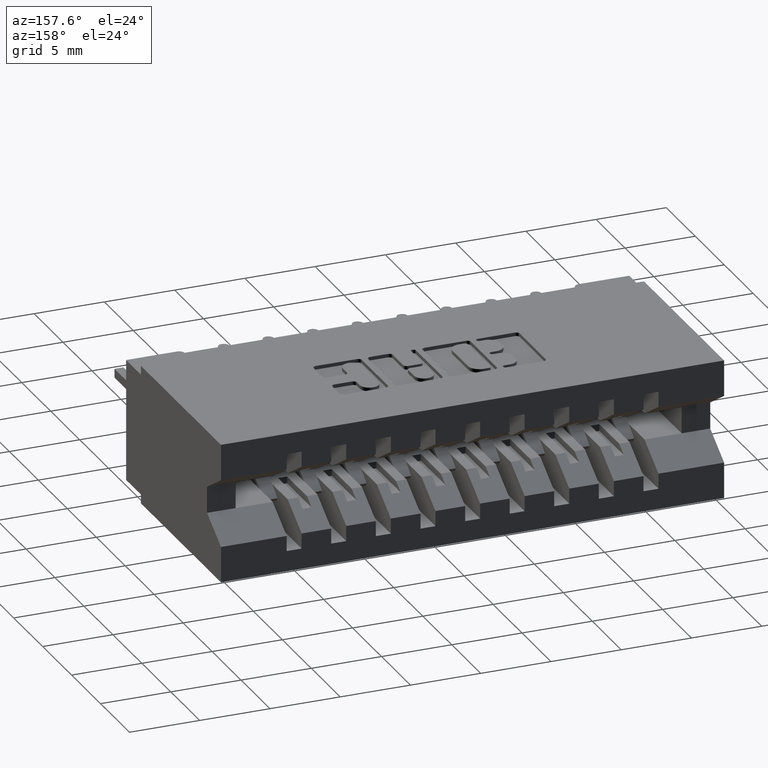
[diagram: clean part render]
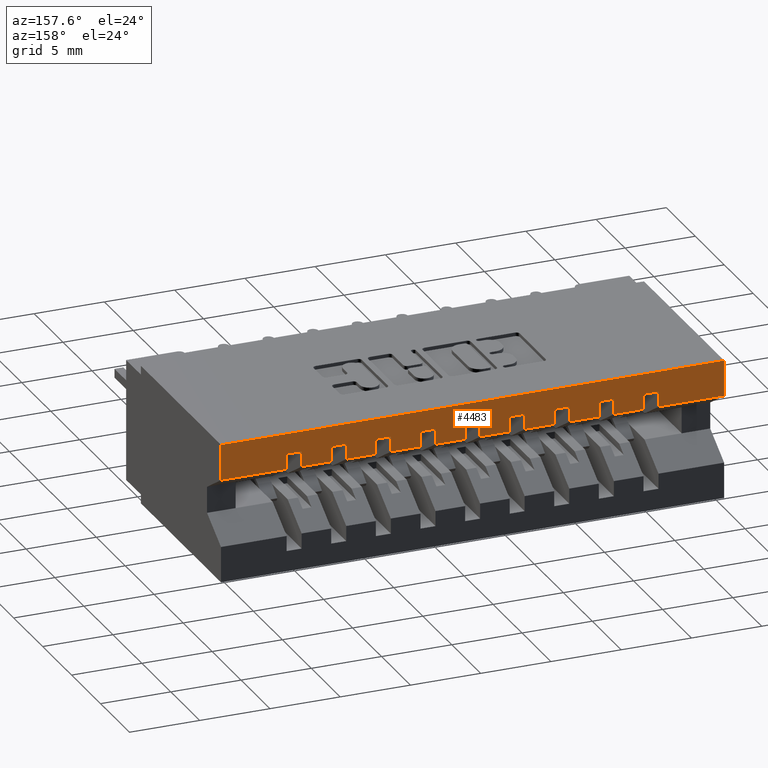
[diagram: same view with one face highlighted and labeled with its STEP entity id]
A machine part, auxiliary view. The second image highlights one B-rep face of the part: STEP entity #4483.
In plain terms, the highlighted planar face has unit normal (0, -1, 0).
Its self-contained STEP definition (entity closure, byte-faithful):
#15 = EDGE_CURVE ( 'NONE', #1273, #5403, #2135, .T. ) ;
#21 = CARTESIAN_POINT ( 'NONE',  ( 0.5589999999999997193, 0.6449999999999999067, -0.05750000000000000250 ) ) ;
#100 = ORIENTED_EDGE ( 'NONE', *, *, #14478, .T. ) ;
#128 = VERTEX_POINT ( 'NONE', #2220 ) ;
#275 = DIRECTION ( 'NONE',  ( 2.385081683068867604E-16, 0.0000000000000000000, 1.000000000000000000 ) ) ;
#326 = CARTESIAN_POINT ( 'NONE',  ( 0.6839999999999997193, 0.6449999999999999067, -0.1002500000000000474 ) ) ;
#372 = LINE ( 'NONE', #3223, #8873 ) ;
#375 = CARTESIAN_POINT ( 'NONE',  ( 1.100999999999999757, 0.6449999999999999067, -0.1002499999999999780 ) ) ;
#466 = CARTESIAN_POINT ( 'NONE',  ( 0.4759999999999996456, 0.6449999999999999067, -5.373951300518784932E-17 ) ) ;
#513 = ORIENTED_EDGE ( 'NONE', *, *, #14557, .T. ) ;
#564 = VERTEX_POINT ( 'NONE', #10973 ) ;
#570 = LINE ( 'NONE', #16834, #15595 ) ;
#624 = ORIENTED_EDGE ( 'NONE', *, *, #4169, .T. ) ;
#656 = CARTESIAN_POINT ( 'NONE',  ( 0.4759999999999996456, 0.6449999999999999067, -0.05750000000000000944 ) ) ;
#853 = VERTEX_POINT ( 'NONE', #17369 ) ;
#917 = CARTESIAN_POINT ( 'NONE',  ( 1.409999999999999920, 0.6449999999999999067, -0.1002500000000000058 ) ) ;
#1012 = VERTEX_POINT ( 'NONE', #5043 ) ;
#1023 = LINE ( 'NONE', #9418, #6523 ) ;
#1070 = VECTOR ( 'NONE', #11728, 39.37007874015748143 ) ;
#1075 = EDGE_CURVE ( 'NONE', #11183, #11575, #10087, .T. ) ;
#1083 = ORIENTED_EDGE ( 'NONE', *, *, #7761, .F. ) ;
#1166 = ORIENTED_EDGE ( 'NONE', *, *, #8908, .T. ) ;
#1256 = CARTESIAN_POINT ( 'NONE',  ( 0.7259999999999997566, 0.6449999999999999067, -5.373951300518784932E-17 ) ) ;
#1273 = VERTEX_POINT ( 'NONE', #10448 ) ;
#1294 = LINE ( 'NONE', #1567, #4496 ) ;
#1317 = EDGE_CURVE ( 'NONE', #17815, #11952, #11000, .T. ) ;
#1391 = DIRECTION ( 'NONE',  ( 1.000000000000000000, -0.0000000000000000000, -2.307304048702925122E-16 ) ) ;
#1395 = ORIENTED_EDGE ( 'NONE', *, *, #13811, .F. ) ;
#1507 = VERTEX_POINT ( 'NONE', #14316 ) ;
#1523 = VECTOR ( 'NONE', #14344, 39.37007874015748143 ) ;
#1567 = CARTESIAN_POINT ( 'NONE',  ( 0.9759999999999996456, 0.6449999999999999067, -5.373951300518784932E-17 ) ) ;
#1688 = VECTOR ( 'NONE', #1903, 39.37007874015748143 ) ;
#1732 = VERTEX_POINT ( 'NONE', #8111 ) ;
#1824 = LINE ( 'NONE', #6067, #12249 ) ;
#1903 = DIRECTION ( 'NONE',  ( 2.385081683068867604E-16, 0.0000000000000000000, 1.000000000000000000 ) ) ;
#1913 = CARTESIAN_POINT ( 'NONE',  ( 0.8089999999999997193, 0.6449999999999999067, -4.404883600063556642E-17 ) ) ;
#1929 = VERTEX_POINT ( 'NONE', #13004 ) ;
#1981 = ORIENTED_EDGE ( 'NONE', *, *, #3581, .T. ) ;
#2004 = CARTESIAN_POINT ( 'NONE',  ( 0.8509999999999997566, 0.6449999999999999067, -0.05750000000000000944 ) ) ;
#2017 = CARTESIAN_POINT ( 'NONE',  ( 1.183999999999999719, 0.6449999999999999067, -4.404883600063556642E-17 ) ) ;
#2036 = LINE ( 'NONE', #466, #1070 ) ;
#2071 = VERTEX_POINT ( 'NONE', #4680 ) ;
#2135 = LINE ( 'NONE', #16191, #9518 ) ;
#2197 = LINE ( 'NONE', #6534, #5041 ) ;
#2207 = CARTESIAN_POINT ( 'NONE',  ( 0.2259999999999996734, 0.6449999999999999067, -0.05750000000000000944 ) ) ;
#2220 = CARTESIAN_POINT ( 'NONE',  ( 1.183999999999999719, 0.6449999999999999067, -0.1002499999999999780 ) ) ;
#2229 = DIRECTION ( 'NONE',  ( 1.000000000000000000, -0.0000000000000000000, -2.307304048702925122E-16 ) ) ;
#2277 = ORIENTED_EDGE ( 'NONE', *, *, #8317, .T. ) ;
#2317 = EDGE_CURVE ( 'NONE', #5099, #11045, #10020, .T. ) ;
#2445 = ORIENTED_EDGE ( 'NONE', *, *, #9603, .F. ) ;
#2446 = CARTESIAN_POINT ( 'NONE',  ( 1.409999999999999920, 0.6449999999999999067, 0.0000000000000000000 ) ) ;
#2600 = ORIENTED_EDGE ( 'NONE', *, *, #16593, .F. ) ;
#2804 = VECTOR ( 'NONE', #3020, 39.37007874015748143 ) ;
#2906 = EDGE_LOOP ( 'NONE', ( #1083, #2277, #16495, #1395, #14758, #1981, #9160, #12013, #4356, #17660, #10345, #4911, #7230, #12744, #5640, #11004, #7072, #10955, #11108, #2600, #13609, #513, #5758, #17480, #17629, #1166, #15197, #8980, #8510, #12831, #9705, #2445, #13832, #6231, #3006, #6268, #9482, #100, #624, #13390 ) ) ;
#3006 = ORIENTED_EDGE ( 'NONE', *, *, #1075, .T. ) ;
#3020 = DIRECTION ( 'NONE',  ( 2.385081683068867604E-16, 0.0000000000000000000, 1.000000000000000000 ) ) ;
#3089 = VERTEX_POINT ( 'NONE', #13674 ) ;
#3222 = CARTESIAN_POINT ( 'NONE',  ( 0.9339999999999996083, 0.6449999999999999067, -0.05750000000000000250 ) ) ;
#3223 = CARTESIAN_POINT ( 'NONE',  ( 0.6009999999999996456, 0.6449999999999999067, -5.373951300518784932E-17 ) ) ;
#3225 = FACE_OUTER_BOUND ( 'NONE', #2906, .T. ) ;
#3396 = DIRECTION ( 'NONE',  ( 2.385081683068867604E-16, 0.0000000000000000000, 1.000000000000000000 ) ) ;
#3405 = VECTOR ( 'NONE', #13669, 39.37007874015748143 ) ;
#3430 = LINE ( 'NONE', #17871, #16562 ) ;
#3496 = VECTOR ( 'NONE', #7061, 39.37007874015748143 ) ;
#3525 = EDGE_CURVE ( 'NONE', #12961, #1507, #5142, .T. ) ;
#3581 = EDGE_CURVE ( 'NONE', #16714, #17197, #8370, .T. ) ;
#3618 = EDGE_CURVE ( 'NONE', #1012, #4962, #9390, .T. ) ;
#3768 = VERTEX_POINT ( 'NONE', #6149 ) ;
#3907 = VERTEX_POINT ( 'NONE', #16606 ) ;
#3923 = EDGE_CURVE ( 'NONE', #16714, #4468, #7988, .T. ) ;
#3936 = CARTESIAN_POINT ( 'NONE',  ( 1.409999999999999920, 0.6449999999999999067, -0.1002500000000000058 ) ) ;
#4150 = DIRECTION ( 'NONE',  ( 2.385081683068867604E-16, 0.0000000000000000000, 1.000000000000000000 ) ) ;
#4152 = VECTOR ( 'NONE', #13209, 39.37007874015748143 ) ;
#4169 = EDGE_CURVE ( 'NONE', #564, #8513, #17057, .T. ) ;
#4278 = VECTOR ( 'NONE', #5477, 39.37007874015748143 ) ;
#4285 = LINE ( 'NONE', #15681, #14471 ) ;
#4294 = LINE ( 'NONE', #15601, #5820 ) ;
#4354 = CARTESIAN_POINT ( 'NONE',  ( 0.0000000000000000000, 0.6449999999999999067, 0.0000000000000000000 ) ) ;
#4356 = ORIENTED_EDGE ( 'NONE', *, *, #10916, .F. ) ;
#4361 = CARTESIAN_POINT ( 'NONE',  ( 0.4339999999999996638, 0.6449999999999999067, -0.1002500000000000058 ) ) ;
#4380 = DIRECTION ( 'NONE',  ( 2.385081683068867604E-16, 0.0000000000000000000, 1.000000000000000000 ) ) ;
#4447 = VECTOR ( 'NONE', #14019, 39.37007874015748143 ) ;
#4468 = VERTEX_POINT ( 'NONE', #13395 ) ;
#4483 = ADVANCED_FACE ( 'NONE', ( #3225 ), #7661, .F. ) ;
#4496 = VECTOR ( 'NONE', #4150, 39.37007874015748143 ) ;
#4500 = VERTEX_POINT ( 'NONE', #14605 ) ;
#4680 = CARTESIAN_POINT ( 'NONE',  ( 0.4339999999999996638, 0.6449999999999999067, -0.05750000000000000250 ) ) ;
#4694 = CARTESIAN_POINT ( 'NONE',  ( 1.100999999999999757, 0.6449999999999999067, -0.05750000000000000944 ) ) ;
#4698 = CARTESIAN_POINT ( 'NONE',  ( 0.0000000000000000000, 0.6449999999999999067, -0.3900000000000000133 ) ) ;
#4911 = ORIENTED_EDGE ( 'NONE', *, *, #17451, .F. ) ;
#4931 = VERTEX_POINT ( 'NONE', #13866 ) ;
#4962 = VERTEX_POINT ( 'NONE', #8408 ) ;
#5007 = LINE ( 'NONE', #10646, #15411 ) ;
#5041 = VECTOR ( 'NONE', #13381, 39.37007874015748143 ) ;
#5043 = CARTESIAN_POINT ( 'NONE',  ( 0.7259999999999997566, 0.6449999999999999067, -0.1002500000000000474 ) ) ;
#5099 = VERTEX_POINT ( 'NONE', #375 ) ;
#5117 = EDGE_CURVE ( 'NONE', #12961, #1929, #16459, .T. ) ;
#5142 = LINE ( 'NONE', #5229, #7240 ) ;
#5171 = CARTESIAN_POINT ( 'NONE',  ( 0.6839999999999997193, 0.6449999999999999067, -0.05750000000000000250 ) ) ;
#5229 = CARTESIAN_POINT ( 'NONE',  ( 0.6839999999999997193, 0.6449999999999999067, -4.404883600063556642E-17 ) ) ;
#5403 = VERTEX_POINT ( 'NONE', #17190 ) ;
#5417 = EDGE_CURVE ( 'NONE', #3907, #4500, #7274, .T. ) ;
#5442 = EDGE_CURVE ( 'NONE', #4931, #6955, #1824, .T. ) ;
#5477 = DIRECTION ( 'NONE',  ( 2.385081683068867604E-16, 0.0000000000000000000, 1.000000000000000000 ) ) ;
#5496 = DIRECTION ( 'NONE',  ( 0.0000000000000000000, 0.0000000000000000000, -1.000000000000000000 ) ) ;
#5552 = CARTESIAN_POINT ( 'NONE',  ( 1.058999999999999719, 0.6449999999999999067, -0.1002499999999999780 ) ) ;
#5640 = ORIENTED_EDGE ( 'NONE', *, *, #3618, .T. ) ;
#5758 = ORIENTED_EDGE ( 'NONE', *, *, #6201, .T. ) ;
#5820 = VECTOR ( 'NONE', #5496, 39.37007874015748143 ) ;
#6017 = DIRECTION ( 'NONE',  ( 1.000000000000000000, -0.0000000000000000000, -2.307304048702925122E-16 ) ) ;
#6067 = CARTESIAN_POINT ( 'NONE',  ( 0.5589999999999997193, 0.6449999999999999067, -4.404883600063556642E-17 ) ) ;
#6149 = CARTESIAN_POINT ( 'NONE',  ( 1.183999999999999719, 0.6449999999999999067, -0.05750000000000000250 ) ) ;
#6185 = DIRECTION ( 'NONE',  ( 0.0000000000000000000, -0.0000000000000000000, -1.000000000000000000 ) ) ;
#6201 = EDGE_CURVE ( 'NONE', #853, #7371, #2036, .T. ) ;
#6231 = ORIENTED_EDGE ( 'NONE', *, *, #8808, .T. ) ;
#6268 = ORIENTED_EDGE ( 'NONE', *, *, #14745, .T. ) ;
#6523 = VECTOR ( 'NONE', #6655, 39.37007874015748143 ) ;
#6534 = CARTESIAN_POINT ( 'NONE',  ( 1.409999999999999920, 0.6449999999999999067, -0.1002500000000000058 ) ) ;
#6655 = DIRECTION ( 'NONE',  ( 1.000000000000000000, -0.0000000000000000000, -2.307304048702925122E-16 ) ) ;
#6807 = CARTESIAN_POINT ( 'NONE',  ( 1.409999999999999920, 0.6449999999999999067, -0.1002500000000000058 ) ) ;
#6840 = DIRECTION ( 'NONE',  ( 1.000000000000000000, -0.0000000000000000000, -2.307304048702925122E-16 ) ) ;
#6894 = DIRECTION ( 'NONE',  ( 2.385081683068867604E-16, 0.0000000000000000000, 1.000000000000000000 ) ) ;
#6955 = VERTEX_POINT ( 'NONE', #15687 ) ;
#6965 = CARTESIAN_POINT ( 'NONE',  ( 1.225999999999999757, 0.6449999999999999067, -5.373951300518784932E-17 ) ) ;
#7061 = DIRECTION ( 'NONE',  ( -1.000000000000000000, 0.0000000000000000000, 0.0000000000000000000 ) ) ;
#7069 = DIRECTION ( 'NONE',  ( -1.000000000000000000, 0.0000000000000000000, 0.0000000000000000000 ) ) ;
#7072 = ORIENTED_EDGE ( 'NONE', *, *, #3525, .F. ) ;
#7140 = DIRECTION ( 'NONE',  ( 1.000000000000000000, -0.0000000000000000000, -2.307304048702925122E-16 ) ) ;
#7230 = ORIENTED_EDGE ( 'NONE', *, *, #5417, .F. ) ;
#7240 = VECTOR ( 'NONE', #16626, 39.37007874015748143 ) ;
#7247 = VERTEX_POINT ( 'NONE', #2446 ) ;
#7274 = LINE ( 'NONE', #1913, #2804 ) ;
#7371 = VERTEX_POINT ( 'NONE', #656 ) ;
#7488 = CARTESIAN_POINT ( 'NONE',  ( 0.8509999999999997566, 0.6449999999999999067, -5.373951300518784932E-17 ) ) ;
#7661 = PLANE ( 'NONE',  #11682 ) ;
#7745 = CARTESIAN_POINT ( 'NONE',  ( 1.409999999999999920, 0.6449999999999999067, -0.1002500000000000058 ) ) ;
#7761 = EDGE_CURVE ( 'NONE', #128, #3768, #17566, .T. ) ;
#7770 = CARTESIAN_POINT ( 'NONE',  ( 0.9759999999999996456, 0.6449999999999999067, -0.05750000000000000944 ) ) ;
#7796 = EDGE_CURVE ( 'NONE', #2071, #7371, #10133, .T. ) ;
#7899 = CARTESIAN_POINT ( 'NONE',  ( 1.409999999999999920, 0.6449999999999999067, -0.1002500000000000058 ) ) ;
#7988 = LINE ( 'NONE', #13630, #4278 ) ;
#7995 = VERTEX_POINT ( 'NONE', #7745 ) ;
#8033 = EDGE_CURVE ( 'NONE', #7247, #7995, #4294, .T. ) ;
#8111 = CARTESIAN_POINT ( 'NONE',  ( 0.3509999999999995901, 0.6449999999999999067, -0.1002500000000000058 ) ) ;
#8124 = VECTOR ( 'NONE', #14004, 39.37007874015748143 ) ;
#8317 = EDGE_CURVE ( 'NONE', #128, #5099, #10669, .T. ) ;
#8370 = LINE ( 'NONE', #6807, #8124 ) ;
#8408 = CARTESIAN_POINT ( 'NONE',  ( 0.7259999999999997566, 0.6449999999999999067, -0.05750000000000000944 ) ) ;
#8480 = EDGE_CURVE ( 'NONE', #17664, #13331, #14011, .T. ) ;
#8510 = ORIENTED_EDGE ( 'NONE', *, *, #9855, .F. ) ;
#8513 = VERTEX_POINT ( 'NONE', #9572 ) ;
#8522 = CARTESIAN_POINT ( 'NONE',  ( 0.0000000000000000000, 0.6449999999999999067, 0.0000000000000000000 ) ) ;
#8547 = CARTESIAN_POINT ( 'NONE',  ( 1.100999999999999757, 0.6449999999999999067, -5.373951300518784932E-17 ) ) ;
#8609 = VECTOR ( 'NONE', #14773, 39.37007874015748143 ) ;
#8690 = LINE ( 'NONE', #11834, #11218 ) ;
#8771 = LINE ( 'NONE', #7488, #4152 ) ;
#8808 = EDGE_CURVE ( 'NONE', #1273, #11183, #15581, .T. ) ;
#8873 = VECTOR ( 'NONE', #275, 39.37007874015748143 ) ;
#8908 = EDGE_CURVE ( 'NONE', #14600, #1732, #18271, .T. ) ;
#8944 = CARTESIAN_POINT ( 'NONE',  ( 0.9759999999999996456, 0.6449999999999999067, -0.1002499999999999780 ) ) ;
#8980 = ORIENTED_EDGE ( 'NONE', *, *, #16803, .F. ) ;
#9160 = ORIENTED_EDGE ( 'NONE', *, *, #12625, .T. ) ;
#9351 = VECTOR ( 'NONE', #3396, 39.37007874015748143 ) ;
#9390 = LINE ( 'NONE', #1256, #17000 ) ;
#9418 = CARTESIAN_POINT ( 'NONE',  ( 0.9339999999999996083, 0.6449999999999999067, -0.05750000000000000250 ) ) ;
#9482 = ORIENTED_EDGE ( 'NONE', *, *, #8033, .T. ) ;
#9518 = VECTOR ( 'NONE', #17503, 39.37007874015748143 ) ;
#9525 = CARTESIAN_POINT ( 'NONE',  ( 1.409999999999999920, 0.6449999999999999067, -0.1002500000000000058 ) ) ;
#9572 = CARTESIAN_POINT ( 'NONE',  ( 1.225999999999999757, 0.6449999999999999067, -0.05750000000000000944 ) ) ;
#9603 = EDGE_CURVE ( 'NONE', #5403, #11010, #570, .T. ) ;
#9703 = CARTESIAN_POINT ( 'NONE',  ( 1.058999999999999719, 0.6449999999999999067, -0.05750000000000000250 ) ) ;
#9705 = ORIENTED_EDGE ( 'NONE', *, *, #16934, .T. ) ;
#9821 = CARTESIAN_POINT ( 'NONE',  ( 1.409999999999999920, 0.6449999999999999067, -0.1002500000000000058 ) ) ;
#9855 = EDGE_CURVE ( 'NONE', #17664, #13001, #13087, .T. ) ;
#9975 = LINE ( 'NONE', #9703, #11226 ) ;
#10004 = DIRECTION ( 'NONE',  ( 2.385081683068867604E-16, 0.0000000000000000000, 1.000000000000000000 ) ) ;
#10020 = LINE ( 'NONE', #8547, #16214 ) ;
#10087 = LINE ( 'NONE', #4354, #1523 ) ;
#10133 = LINE ( 'NONE', #15796, #12911 ) ;
#10141 = LINE ( 'NONE', #15808, #10569 ) ;
#10338 = DIRECTION ( 'NONE',  ( 0.0000000000000000000, -1.000000000000000000, 0.0000000000000000000 ) ) ;
#10345 = ORIENTED_EDGE ( 'NONE', *, *, #13951, .T. ) ;
#10448 = CARTESIAN_POINT ( 'NONE',  ( 0.1839999999999996916, 0.6449999999999999067, -0.1002500000000000058 ) ) ;
#10500 = LINE ( 'NONE', #16163, #8609 ) ;
#10539 = LINE ( 'NONE', #5171, #17996 ) ;
#10569 = VECTOR ( 'NONE', #13112, 39.37007874015748143 ) ;
#10646 = CARTESIAN_POINT ( 'NONE',  ( 0.0000000000000000000, 0.6449999999999999067, 0.0000000000000000000 ) ) ;
#10669 = LINE ( 'NONE', #7899, #13528 ) ;
#10726 = EDGE_CURVE ( 'NONE', #1507, #4962, #10539, .T. ) ;
#10911 = VERTEX_POINT ( 'NONE', #3222 ) ;
#10916 = EDGE_CURVE ( 'NONE', #17815, #10911, #10141, .T. ) ;
#10950 = VECTOR ( 'NONE', #14483, 39.37007874015748143 ) ;
#10955 = ORIENTED_EDGE ( 'NONE', *, *, #5117, .T. ) ;
#10973 = CARTESIAN_POINT ( 'NONE',  ( 1.225999999999999757, 0.6449999999999999067, -0.1002499999999999780 ) ) ;
#11000 = LINE ( 'NONE', #9525, #13341 ) ;
#11004 = ORIENTED_EDGE ( 'NONE', *, *, #10726, .F. ) ;
#11010 = VERTEX_POINT ( 'NONE', #2207 ) ;
#11045 = VERTEX_POINT ( 'NONE', #4694 ) ;
#11050 = LINE ( 'NONE', #15333, #4447 ) ;
#11108 = ORIENTED_EDGE ( 'NONE', *, *, #17264, .T. ) ;
#11140 = DIRECTION ( 'NONE',  ( -1.000000000000000000, 0.0000000000000000000, 0.0000000000000000000 ) ) ;
#11183 = VERTEX_POINT ( 'NONE', #12360 ) ;
#11218 = VECTOR ( 'NONE', #6017, 39.37007874015748143 ) ;
#11226 = VECTOR ( 'NONE', #1391, 39.37007874015748143 ) ;
#11264 = CARTESIAN_POINT ( 'NONE',  ( 0.3089999999999997193, 0.6449999999999999067, -4.404883600063556642E-17 ) ) ;
#11575 = VERTEX_POINT ( 'NONE', #8522 ) ;
#11608 = DIRECTION ( 'NONE',  ( 2.385081683068867604E-16, 0.0000000000000000000, 1.000000000000000000 ) ) ;
#11682 = AXIS2_PLACEMENT_3D ( 'NONE', #4698, #10338, #6185 ) ;
#11698 = CARTESIAN_POINT ( 'NONE',  ( 0.3089999999999996083, 0.6449999999999999067, -0.1002500000000000058 ) ) ;
#11728 = DIRECTION ( 'NONE',  ( 2.385081683068867604E-16, 0.0000000000000000000, 1.000000000000000000 ) ) ;
#11834 = CARTESIAN_POINT ( 'NONE',  ( 0.3089999999999997193, 0.6449999999999999067, -0.05750000000000000250 ) ) ;
#11904 = CARTESIAN_POINT ( 'NONE',  ( 0.8509999999999997566, 0.6449999999999999067, -0.1002499999999999780 ) ) ;
#11952 = VERTEX_POINT ( 'NONE', #11904 ) ;
#12013 = ORIENTED_EDGE ( 'NONE', *, *, #15860, .F. ) ;
#12072 = CARTESIAN_POINT ( 'NONE',  ( 0.3509999999999997011, 0.6449999999999999067, -0.05750000000000000944 ) ) ;
#12249 = VECTOR ( 'NONE', #17371, 39.37007874015748143 ) ;
#12360 = CARTESIAN_POINT ( 'NONE',  ( 0.0000000000000000000, 0.6449999999999999067, -0.1002500000000000058 ) ) ;
#12555 = CARTESIAN_POINT ( 'NONE',  ( 0.3509999999999997011, 0.6449999999999999067, -5.373951300518784932E-17 ) ) ;
#12625 = EDGE_CURVE ( 'NONE', #17197, #15124, #1294, .T. ) ;
#12647 = VECTOR ( 'NONE', #18003, 39.37007874015748143 ) ;
#12744 = ORIENTED_EDGE ( 'NONE', *, *, #13012, .T. ) ;
#12831 = ORIENTED_EDGE ( 'NONE', *, *, #8480, .T. ) ;
#12911 = VECTOR ( 'NONE', #17475, 39.37007874015748143 ) ;
#12961 = VERTEX_POINT ( 'NONE', #326 ) ;
#13001 = VERTEX_POINT ( 'NONE', #16982 ) ;
#13004 = CARTESIAN_POINT ( 'NONE',  ( 0.6009999999999996456, 0.6449999999999999067, -0.1002500000000000474 ) ) ;
#13012 = EDGE_CURVE ( 'NONE', #3907, #1012, #4285, .T. ) ;
#13087 = LINE ( 'NONE', #11264, #1688 ) ;
#13112 = DIRECTION ( 'NONE',  ( 2.385081683068867604E-16, 0.0000000000000000000, 1.000000000000000000 ) ) ;
#13209 = DIRECTION ( 'NONE',  ( 2.385081683068867604E-16, 0.0000000000000000000, 1.000000000000000000 ) ) ;
#13331 = VERTEX_POINT ( 'NONE', #16414 ) ;
#13341 = VECTOR ( 'NONE', #15180, 39.37007874015748143 ) ;
#13381 = DIRECTION ( 'NONE',  ( -1.000000000000000000, 0.0000000000000000000, 0.0000000000000000000 ) ) ;
#13390 = ORIENTED_EDGE ( 'NONE', *, *, #17585, .F. ) ;
#13395 = CARTESIAN_POINT ( 'NONE',  ( 1.058999999999999719, 0.6449999999999999067, -0.05750000000000000250 ) ) ;
#13528 = VECTOR ( 'NONE', #13541, 39.37007874015748143 ) ;
#13541 = DIRECTION ( 'NONE',  ( -1.000000000000000000, 0.0000000000000000000, 0.0000000000000000000 ) ) ;
#13600 = VECTOR ( 'NONE', #15450, 39.37007874015748143 ) ;
#13609 = ORIENTED_EDGE ( 'NONE', *, *, #5442, .F. ) ;
#13630 = CARTESIAN_POINT ( 'NONE',  ( 1.058999999999999719, 0.6449999999999999067, -4.404883600063556642E-17 ) ) ;
#13669 = DIRECTION ( 'NONE',  ( -1.000000000000000000, 0.0000000000000000000, 0.0000000000000000000 ) ) ;
#13674 = CARTESIAN_POINT ( 'NONE',  ( 0.6009999999999996456, 0.6449999999999999067, -0.05750000000000000944 ) ) ;
#13811 = EDGE_CURVE ( 'NONE', #4468, #11045, #9975, .T. ) ;
#13832 = ORIENTED_EDGE ( 'NONE', *, *, #15, .F. ) ;
#13866 = CARTESIAN_POINT ( 'NONE',  ( 0.5589999999999997193, 0.6449999999999999067, -0.1002500000000000474 ) ) ;
#13951 = EDGE_CURVE ( 'NONE', #11952, #17803, #8771, .T. ) ;
#14004 = DIRECTION ( 'NONE',  ( -1.000000000000000000, 0.0000000000000000000, 0.0000000000000000000 ) ) ;
#14011 = LINE ( 'NONE', #3936, #17973 ) ;
#14019 = DIRECTION ( 'NONE',  ( 1.000000000000000000, -0.0000000000000000000, -2.307304048702925122E-16 ) ) ;
#14157 = LINE ( 'NONE', #21, #17753 ) ;
#14202 = LINE ( 'NONE', #17092, #10950 ) ;
#14295 = CARTESIAN_POINT ( 'NONE',  ( 0.4339999999999996638, 0.6449999999999999067, -4.404883600063556642E-17 ) ) ;
#14316 = CARTESIAN_POINT ( 'NONE',  ( 0.6839999999999997193, 0.6449999999999999067, -0.05750000000000000250 ) ) ;
#14342 = EDGE_CURVE ( 'NONE', #14600, #2071, #14395, .T. ) ;
#14344 = DIRECTION ( 'NONE',  ( -0.0000000000000000000, -0.0000000000000000000, 1.000000000000000000 ) ) ;
#14395 = LINE ( 'NONE', #14295, #16294 ) ;
#14462 = VERTEX_POINT ( 'NONE', #12072 ) ;
#14471 = VECTOR ( 'NONE', #7069, 39.37007874015748143 ) ;
#14478 = EDGE_CURVE ( 'NONE', #7995, #564, #2197, .T. ) ;
#14483 = DIRECTION ( 'NONE',  ( 1.000000000000000000, -0.0000000000000000000, -2.307304048702925122E-16 ) ) ;
#14557 = EDGE_CURVE ( 'NONE', #4931, #853, #10500, .T. ) ;
#14600 = VERTEX_POINT ( 'NONE', #4361 ) ;
#14605 = CARTESIAN_POINT ( 'NONE',  ( 0.8089999999999997193, 0.6449999999999999067, -0.05750000000000000250 ) ) ;
#14745 = EDGE_CURVE ( 'NONE', #11575, #7247, #5007, .T. ) ;
#14758 = ORIENTED_EDGE ( 'NONE', *, *, #3923, .F. ) ;
#14773 = DIRECTION ( 'NONE',  ( -1.000000000000000000, 0.0000000000000000000, 0.0000000000000000000 ) ) ;
#15124 = VERTEX_POINT ( 'NONE', #7770 ) ;
#15180 = DIRECTION ( 'NONE',  ( -1.000000000000000000, 0.0000000000000000000, 0.0000000000000000000 ) ) ;
#15197 = ORIENTED_EDGE ( 'NONE', *, *, #15259, .T. ) ;
#15259 = EDGE_CURVE ( 'NONE', #1732, #14462, #17109, .T. ) ;
#15333 = CARTESIAN_POINT ( 'NONE',  ( 0.8089999999999997193, 0.6449999999999999067, -0.05750000000000000250 ) ) ;
#15411 = VECTOR ( 'NONE', #16303, 39.37007874015748143 ) ;
#15450 = DIRECTION ( 'NONE',  ( 2.385081683068867604E-16, 0.0000000000000000000, 1.000000000000000000 ) ) ;
#15581 = LINE ( 'NONE', #9821, #12647 ) ;
#15595 = VECTOR ( 'NONE', #6840, 39.37007874015748143 ) ;
#15601 = CARTESIAN_POINT ( 'NONE',  ( 1.409999999999999920, 0.6449999999999999067, 0.0000000000000000000 ) ) ;
#15681 = CARTESIAN_POINT ( 'NONE',  ( 1.409999999999999920, 0.6449999999999999067, -0.1002500000000000058 ) ) ;
#15687 = CARTESIAN_POINT ( 'NONE',  ( 0.5589999999999997193, 0.6449999999999999067, -0.05750000000000000250 ) ) ;
#15796 = CARTESIAN_POINT ( 'NONE',  ( 0.4339999999999996638, 0.6449999999999999067, -0.05750000000000000250 ) ) ;
#15808 = CARTESIAN_POINT ( 'NONE',  ( 0.9339999999999996083, 0.6449999999999999067, -4.404883600063556642E-17 ) ) ;
#15860 = EDGE_CURVE ( 'NONE', #10911, #15124, #1023, .T. ) ;
#16163 = CARTESIAN_POINT ( 'NONE',  ( 1.409999999999999920, 0.6449999999999999067, -0.1002500000000000058 ) ) ;
#16191 = CARTESIAN_POINT ( 'NONE',  ( 0.1839999999999996916, 0.6449999999999999067, -4.404883600063556642E-17 ) ) ;
#16200 = DIRECTION ( 'NONE',  ( 2.385081683068867604E-16, 0.0000000000000000000, 1.000000000000000000 ) ) ;
#16214 = VECTOR ( 'NONE', #4380, 39.37007874015748143 ) ;
#16245 = CARTESIAN_POINT ( 'NONE',  ( 0.9339999999999996083, 0.6449999999999999067, -0.1002499999999999780 ) ) ;
#16294 = VECTOR ( 'NONE', #11608, 39.37007874015748143 ) ;
#16303 = DIRECTION ( 'NONE',  ( 1.000000000000000000, 0.0000000000000000000, 0.0000000000000000000 ) ) ;
#16414 = CARTESIAN_POINT ( 'NONE',  ( 0.2259999999999996734, 0.6449999999999999067, -0.1002500000000000058 ) ) ;
#16459 = LINE ( 'NONE', #917, #3405 ) ;
#16495 = ORIENTED_EDGE ( 'NONE', *, *, #2317, .T. ) ;
#16562 = VECTOR ( 'NONE', #16200, 39.37007874015748143 ) ;
#16593 = EDGE_CURVE ( 'NONE', #6955, #3089, #14157, .T. ) ;
#16606 = CARTESIAN_POINT ( 'NONE',  ( 0.8089999999999997193, 0.6449999999999999067, -0.1002499999999999780 ) ) ;
#16626 = DIRECTION ( 'NONE',  ( 2.385081683068867604E-16, 0.0000000000000000000, 1.000000000000000000 ) ) ;
#16714 = VERTEX_POINT ( 'NONE', #5552 ) ;
#16803 = EDGE_CURVE ( 'NONE', #13001, #14462, #8690, .T. ) ;
#16834 = CARTESIAN_POINT ( 'NONE',  ( 0.1839999999999996916, 0.6449999999999999067, -0.05750000000000000250 ) ) ;
#16934 = EDGE_CURVE ( 'NONE', #13331, #11010, #3430, .T. ) ;
#16982 = CARTESIAN_POINT ( 'NONE',  ( 0.3089999999999997193, 0.6449999999999999067, -0.05750000000000000250 ) ) ;
#17000 = VECTOR ( 'NONE', #6894, 39.37007874015748143 ) ;
#17057 = LINE ( 'NONE', #6965, #17615 ) ;
#17092 = CARTESIAN_POINT ( 'NONE',  ( 1.183999999999999719, 0.6449999999999999067, -0.05750000000000000250 ) ) ;
#17109 = LINE ( 'NONE', #12555, #13600 ) ;
#17190 = CARTESIAN_POINT ( 'NONE',  ( 0.1839999999999996916, 0.6449999999999999067, -0.05750000000000000250 ) ) ;
#17197 = VERTEX_POINT ( 'NONE', #8944 ) ;
#17264 = EDGE_CURVE ( 'NONE', #1929, #3089, #372, .T. ) ;
#17369 = CARTESIAN_POINT ( 'NONE',  ( 0.4759999999999996456, 0.6449999999999999067, -0.1002500000000000058 ) ) ;
#17371 = DIRECTION ( 'NONE',  ( 2.385081683068867604E-16, 0.0000000000000000000, 1.000000000000000000 ) ) ;
#17451 = EDGE_CURVE ( 'NONE', #4500, #17803, #11050, .T. ) ;
#17475 = DIRECTION ( 'NONE',  ( 1.000000000000000000, -0.0000000000000000000, -2.307304048702925122E-16 ) ) ;
#17480 = ORIENTED_EDGE ( 'NONE', *, *, #7796, .F. ) ;
#17503 = DIRECTION ( 'NONE',  ( 2.385081683068867604E-16, 0.0000000000000000000, 1.000000000000000000 ) ) ;
#17566 = LINE ( 'NONE', #2017, #9351 ) ;
#17585 = EDGE_CURVE ( 'NONE', #3768, #8513, #14202, .T. ) ;
#17615 = VECTOR ( 'NONE', #10004, 39.37007874015748143 ) ;
#17629 = ORIENTED_EDGE ( 'NONE', *, *, #14342, .F. ) ;
#17660 = ORIENTED_EDGE ( 'NONE', *, *, #1317, .T. ) ;
#17664 = VERTEX_POINT ( 'NONE', #11698 ) ;
#17753 = VECTOR ( 'NONE', #7140, 39.37007874015748143 ) ;
#17803 = VERTEX_POINT ( 'NONE', #2004 ) ;
#17815 = VERTEX_POINT ( 'NONE', #16245 ) ;
#17871 = CARTESIAN_POINT ( 'NONE',  ( 0.2259999999999996734, 0.6449999999999999067, -5.373951300518784932E-17 ) ) ;
#17973 = VECTOR ( 'NONE', #11140, 39.37007874015748143 ) ;
#17996 = VECTOR ( 'NONE', #2229, 39.37007874015748143 ) ;
#18003 = DIRECTION ( 'NONE',  ( -1.000000000000000000, 0.0000000000000000000, 0.0000000000000000000 ) ) ;
#18172 = CARTESIAN_POINT ( 'NONE',  ( 1.409999999999999920, 0.6449999999999999067, -0.1002500000000000058 ) ) ;
#18271 = LINE ( 'NONE', #18172, #3496 ) ;